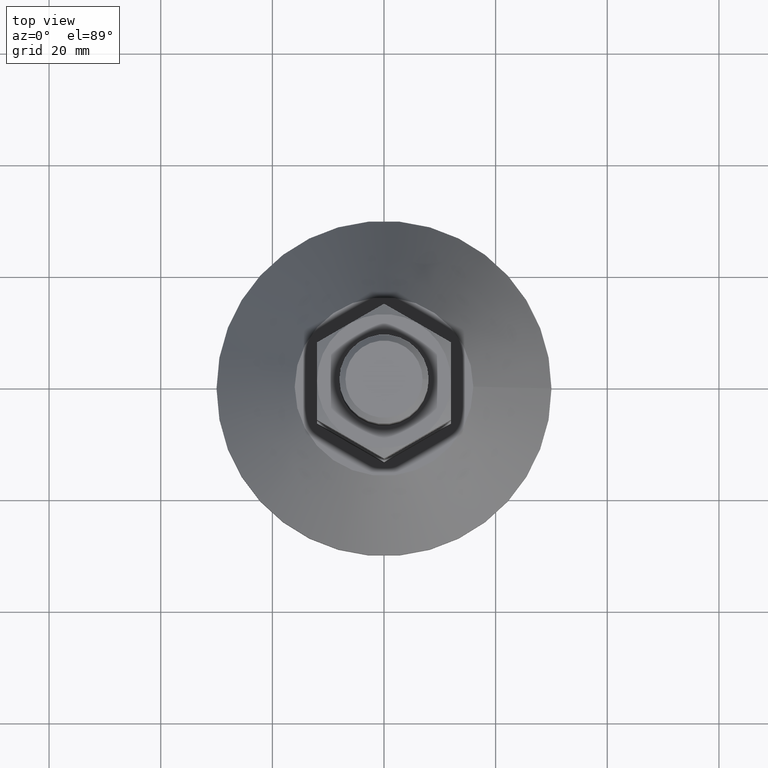
[diagram: clean part render]
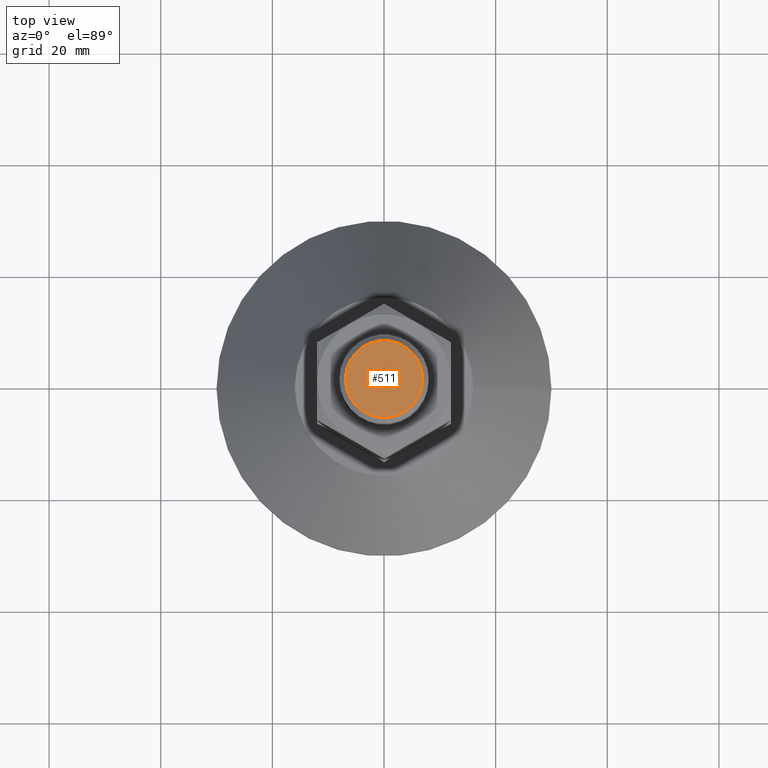
[diagram: same view with one face highlighted and labeled with its STEP entity id]
A machine part, top view. The second image highlights one B-rep face of the part: STEP entity #511.
In plain terms, the highlighted planar face has unit normal (0, 0, 1).
Its self-contained STEP definition (entity closure, byte-faithful):
#474=CARTESIAN_POINT('',(6.917470000000549,6.123234E-015,100.000000000000570));
#475=VERTEX_POINT('',#474);
#482=CARTESIAN_POINT('',(-6.917470000000321,6.123234E-015,100.000000000000570));
#483=VERTEX_POINT('',#482);
#484=CARTESIAN_POINT('',(1.136868E-013,6.123234E-015,100.000000000000570));
#485=DIRECTION('',(0.0,6.123234E-017,1.0));
#486=DIRECTION('',(1.0,0.0,0.0));
#487=AXIS2_PLACEMENT_3D('',#484,#485,#486);
#488=CIRCLE('',#487,6.917470000000435);
#489=EDGE_CURVE('',#483,#475,#488,.T.);
#491=CARTESIAN_POINT('',(1.136868E-013,6.123234E-015,100.000000000000570));
#492=DIRECTION('',(0.0,6.123234E-017,1.0));
#493=DIRECTION('',(1.0,0.0,0.0));
#494=AXIS2_PLACEMENT_3D('',#491,#492,#493);
#495=CIRCLE('',#494,6.917470000000435);
#496=EDGE_CURVE('',#475,#483,#495,.T.);
#502=CARTESIAN_POINT('',(13.834940000000984,-13.834940000000865,100.000000000000570));
#503=DIRECTION('',(0.0,0.0,1.0));
#504=DIRECTION('',(0.0,1.0,0.0));
#505=AXIS2_PLACEMENT_3D('',#502,#503,#504);
#506=PLANE('',#505);
#507=ORIENTED_EDGE('',*,*,#496,.T.);
#508=ORIENTED_EDGE('',*,*,#489,.T.);
#509=EDGE_LOOP('',(#507,#508));
#510=FACE_OUTER_BOUND('',#509,.T.);
#511=ADVANCED_FACE('',(#510),#506,.T.);